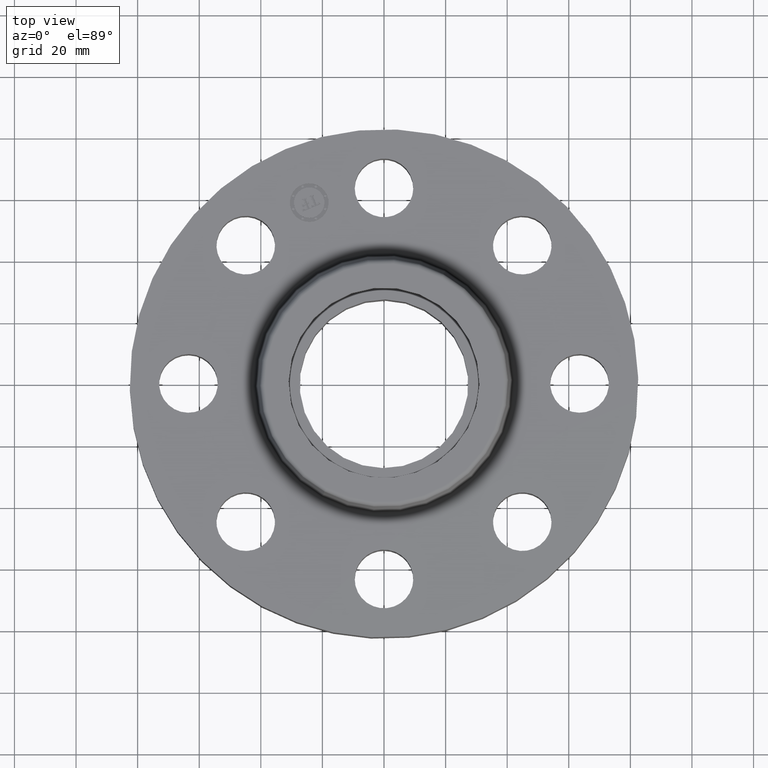
[diagram: clean part render]
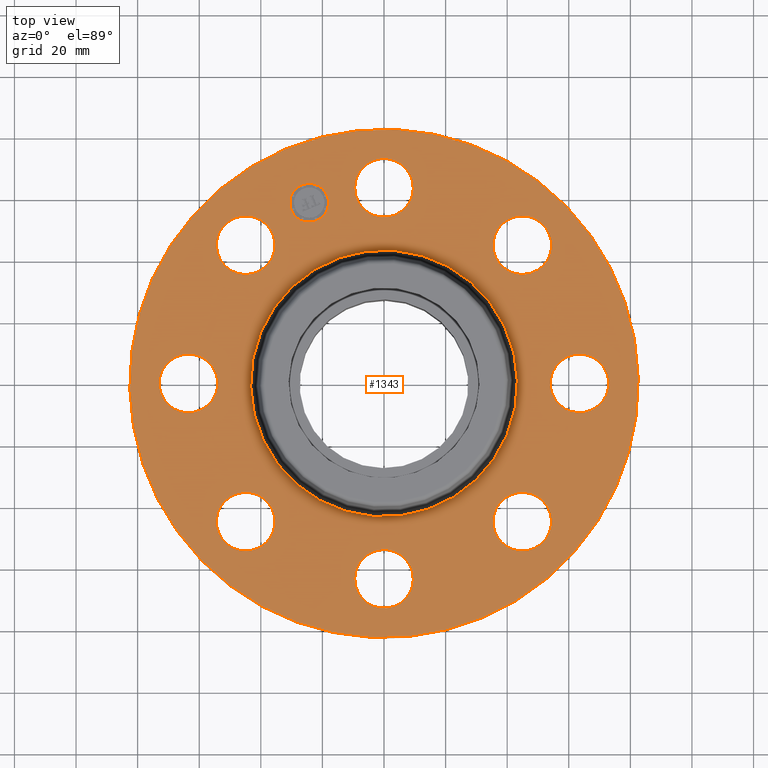
[diagram: same view with one face highlighted and labeled with its STEP entity id]
A machine part, top view. The second image highlights one B-rep face of the part: STEP entity #1343.
In plain terms, the highlighted planar face has unit normal (0, 0, -1).
Its self-contained STEP definition (entity closure, byte-faithful):
#561=AXIS2_PLACEMENT_3D('Circle Axis2P3D',#559,#560,$) ;
#580=AXIS2_PLACEMENT_3D('Circle Axis2P3D',#578,#579,$) ;
#611=AXIS2_PLACEMENT_3D('Circle Axis2P3D',#609,#610,$) ;
#623=AXIS2_PLACEMENT_3D('Circle Axis2P3D',#621,#622,$) ;
#655=AXIS2_PLACEMENT_3D('Circle Axis2P3D',#653,#654,$) ;
#667=AXIS2_PLACEMENT_3D('Circle Axis2P3D',#665,#666,$) ;
#699=AXIS2_PLACEMENT_3D('Circle Axis2P3D',#697,#698,$) ;
#711=AXIS2_PLACEMENT_3D('Circle Axis2P3D',#709,#710,$) ;
#743=AXIS2_PLACEMENT_3D('Circle Axis2P3D',#741,#742,$) ;
#755=AXIS2_PLACEMENT_3D('Circle Axis2P3D',#753,#754,$) ;
#787=AXIS2_PLACEMENT_3D('Circle Axis2P3D',#785,#786,$) ;
#799=AXIS2_PLACEMENT_3D('Circle Axis2P3D',#797,#798,$) ;
#831=AXIS2_PLACEMENT_3D('Circle Axis2P3D',#829,#830,$) ;
#843=AXIS2_PLACEMENT_3D('Circle Axis2P3D',#841,#842,$) ;
#875=AXIS2_PLACEMENT_3D('Circle Axis2P3D',#873,#874,$) ;
#887=AXIS2_PLACEMENT_3D('Circle Axis2P3D',#885,#886,$) ;
#919=AXIS2_PLACEMENT_3D('Circle Axis2P3D',#917,#918,$) ;
#931=AXIS2_PLACEMENT_3D('Circle Axis2P3D',#929,#930,$) ;
#949=AXIS2_PLACEMENT_3D('Circle Axis2P3D',#947,#948,$) ;
#984=AXIS2_PLACEMENT_3D('Circle Axis2P3D',#982,#983,$) ;
#1283=AXIS2_PLACEMENT_3D('Plane Axis2P3D',#1280,#1281,#1282) ;
#1327=AXIS2_PLACEMENT_3D('Circle Axis2P3D',#1325,#1326,$) ;
#1336=AXIS2_PLACEMENT_3D('Circle Axis2P3D',#1334,#1335,$) ;
#556=CARTESIAN_POINT('Vertex',(-1.55813300047,-2.85214332616,1.)) ;
#559=CARTESIAN_POINT('Axis2P3D Location',(0.,0.,1.)) ;
#563=CARTESIAN_POINT('Vertex',(1.55813300047,2.85214332616,1.)) ;
#578=CARTESIAN_POINT('Axis2P3D Location',(0.,0.,1.)) ;
#599=CARTESIAN_POINT('Vertex',(2.12759806422,-1.66218962879,1.)) ;
#606=CARTESIAN_POINT('Vertex',(1.40793584173,-1.87334427715,1.)) ;
#609=CARTESIAN_POINT('Axis2P3D Location',(1.76776695297,-1.76776695297,1.)) ;
#621=CARTESIAN_POINT('Axis2P3D Location',(1.76776695297,-1.76776695297,1.)) ;
#643=CARTESIAN_POINT('Vertex',(0.32909346071,-2.67978457699,1.)) ;
#650=CARTESIAN_POINT('Vertex',(-0.32909346071,-2.32021542303,1.)) ;
#653=CARTESIAN_POINT('Axis2P3D Location',(3.06161699788E-016,-2.50000000001,1.)) ;
#665=CARTESIAN_POINT('Axis2P3D Location',(3.06161699788E-016,-2.50000000001,1.)) ;
#687=CARTESIAN_POINT('Vertex',(-1.66218962879,-2.12759806422,1.)) ;
#694=CARTESIAN_POINT('Vertex',(-1.87334427715,-1.40793584173,1.)) ;
#697=CARTESIAN_POINT('Axis2P3D Location',(-1.76776695297,-1.76776695297,1.)) ;
#709=CARTESIAN_POINT('Axis2P3D Location',(-1.76776695297,-1.76776695297,1.)) ;
#731=CARTESIAN_POINT('Vertex',(-2.67978457699,-0.32909346071,1.)) ;
#738=CARTESIAN_POINT('Vertex',(-2.32021542303,0.32909346071,1.)) ;
#741=CARTESIAN_POINT('Axis2P3D Location',(-2.50000000001,-1.79501315131E-016,1.)) ;
#753=CARTESIAN_POINT('Axis2P3D Location',(-2.50000000001,-1.79501315131E-016,1.)) ;
#775=CARTESIAN_POINT('Vertex',(-2.12759806422,1.66218962879,1.)) ;
#782=CARTESIAN_POINT('Vertex',(-1.40793584173,1.87334427715,1.)) ;
#785=CARTESIAN_POINT('Axis2P3D Location',(-1.76776695297,1.76776695297,1.)) ;
#797=CARTESIAN_POINT('Axis2P3D Location',(-1.76776695297,1.76776695297,1.)) ;
#819=CARTESIAN_POINT('Vertex',(-0.32909346071,2.67978457699,1.)) ;
#826=CARTESIAN_POINT('Vertex',(0.32909346071,2.32021542303,1.)) ;
#829=CARTESIAN_POINT('Axis2P3D Location',(0.,2.50000000001,1.)) ;
#841=CARTESIAN_POINT('Axis2P3D Location',(0.,2.50000000001,1.)) ;
#863=CARTESIAN_POINT('Vertex',(1.66218962879,2.12759806422,1.)) ;
#870=CARTESIAN_POINT('Vertex',(1.87334427715,1.40793584173,1.)) ;
#873=CARTESIAN_POINT('Axis2P3D Location',(1.76776695297,1.76776695297,1.)) ;
#885=CARTESIAN_POINT('Axis2P3D Location',(1.76776695297,1.76776695297,1.)) ;
#907=CARTESIAN_POINT('Vertex',(2.67978457699,0.32909346071,1.)) ;
#914=CARTESIAN_POINT('Vertex',(2.32021542303,-0.32909346071,1.)) ;
#917=CARTESIAN_POINT('Axis2P3D Location',(2.50000000001,-1.26660384657E-016,1.)) ;
#929=CARTESIAN_POINT('Axis2P3D Location',(2.50000000001,-1.26660384657E-016,1.)) ;
#947=CARTESIAN_POINT('Axis2P3D Location',(0.,0.,1.)) ;
#951=CARTESIAN_POINT('Vertex',(0.81758641395,1.49658189218,1.)) ;
#953=CARTESIAN_POINT('Vertex',(-0.81758641395,-1.49658189218,1.)) ;
#982=CARTESIAN_POINT('Axis2P3D Location',(0.,0.,1.)) ;
#1280=CARTESIAN_POINT('Axis2P3D Location',(0.,3.25000000001,1.)) ;
#1325=CARTESIAN_POINT('Axis2P3D Location',(-0.956708580917,2.30969883129,1.)) ;
#1329=CARTESIAN_POINT('Vertex',(-1.18536876521,2.21498468178,1.)) ;
#1331=CARTESIAN_POINT('Vertex',(-0.728048396619,2.4044129808,1.)) ;
#1334=CARTESIAN_POINT('Axis2P3D Location',(-0.956708580917,2.30969883129,1.)) ;
#560=DIRECTION('Axis2P3D Direction',(0.,0.,-0.0393700787402)) ;
#579=DIRECTION('Axis2P3D Direction',(0.,0.,-0.0393700787402)) ;
#610=DIRECTION('Axis2P3D Direction',(-0.,0.,-0.0393700787402)) ;
#622=DIRECTION('Axis2P3D Direction',(-0.,0.,-0.0393700787402)) ;
#654=DIRECTION('Axis2P3D Direction',(-0.,0.,-0.0393700787402)) ;
#666=DIRECTION('Axis2P3D Direction',(-0.,0.,-0.0393700787402)) ;
#698=DIRECTION('Axis2P3D Direction',(0.,0.,-0.0393700787402)) ;
#710=DIRECTION('Axis2P3D Direction',(0.,0.,-0.0393700787402)) ;
#742=DIRECTION('Axis2P3D Direction',(0.,0.,-0.0393700787402)) ;
#754=DIRECTION('Axis2P3D Direction',(0.,0.,-0.0393700787402)) ;
#786=DIRECTION('Axis2P3D Direction',(0.,0.,-0.0393700787402)) ;
#798=DIRECTION('Axis2P3D Direction',(0.,0.,-0.0393700787402)) ;
#830=DIRECTION('Axis2P3D Direction',(0.,-0.,-0.0393700787402)) ;
#842=DIRECTION('Axis2P3D Direction',(0.,-0.,-0.0393700787402)) ;
#874=DIRECTION('Axis2P3D Direction',(0.,-0.,-0.0393700787402)) ;
#886=DIRECTION('Axis2P3D Direction',(0.,-0.,-0.0393700787402)) ;
#918=DIRECTION('Axis2P3D Direction',(0.,-0.,-0.0393700787402)) ;
#930=DIRECTION('Axis2P3D Direction',(0.,-0.,-0.0393700787402)) ;
#948=DIRECTION('Axis2P3D Direction',(0.,0.,-0.0393700787402)) ;
#983=DIRECTION('Axis2P3D Direction',(0.,0.,-0.0393700787402)) ;
#1281=DIRECTION('Axis2P3D Direction',(0.,0.,-0.0393700787402)) ;
#1282=DIRECTION('Axis2P3D XDirection',(0.0393700787402,0.,0.)) ;
#1326=DIRECTION('Axis2P3D Direction',(0.,0.,-0.0393700787402)) ;
#1335=DIRECTION('Axis2P3D Direction',(0.,0.,-0.0393700787402)) ;
#1286=ORIENTED_EDGE('',*,*,#582,.F.) ;
#1287=ORIENTED_EDGE('',*,*,#565,.F.) ;
#1290=ORIENTED_EDGE('',*,*,#833,.T.) ;
#1291=ORIENTED_EDGE('',*,*,#845,.T.) ;
#1294=ORIENTED_EDGE('',*,*,#986,.T.) ;
#1295=ORIENTED_EDGE('',*,*,#955,.T.) ;
#1298=ORIENTED_EDGE('',*,*,#889,.T.) ;
#1299=ORIENTED_EDGE('',*,*,#877,.T.) ;
#1302=ORIENTED_EDGE('',*,*,#933,.T.) ;
#1303=ORIENTED_EDGE('',*,*,#921,.T.) ;
#1306=ORIENTED_EDGE('',*,*,#625,.T.) ;
#1307=ORIENTED_EDGE('',*,*,#613,.T.) ;
#1310=ORIENTED_EDGE('',*,*,#669,.T.) ;
#1311=ORIENTED_EDGE('',*,*,#657,.T.) ;
#1314=ORIENTED_EDGE('',*,*,#713,.T.) ;
#1315=ORIENTED_EDGE('',*,*,#701,.T.) ;
#1318=ORIENTED_EDGE('',*,*,#757,.T.) ;
#1319=ORIENTED_EDGE('',*,*,#745,.T.) ;
#1322=ORIENTED_EDGE('',*,*,#801,.T.) ;
#1323=ORIENTED_EDGE('',*,*,#789,.T.) ;
#1340=ORIENTED_EDGE('',*,*,#1333,.T.) ;
#1341=ORIENTED_EDGE('',*,*,#1338,.T.) ;
#1292=FACE_BOUND('',#1289,.T.) ;
#1296=FACE_BOUND('',#1293,.T.) ;
#1300=FACE_BOUND('',#1297,.T.) ;
#1304=FACE_BOUND('',#1301,.T.) ;
#1308=FACE_BOUND('',#1305,.T.) ;
#1312=FACE_BOUND('',#1309,.T.) ;
#1316=FACE_BOUND('',#1313,.T.) ;
#1320=FACE_BOUND('',#1317,.T.) ;
#1324=FACE_BOUND('',#1321,.T.) ;
#1342=FACE_BOUND('',#1339,.T.) ;
#1343=ADVANCED_FACE('PartBody',(#1288,#1292,#1296,#1300,#1304,#1308,#1312,#1316,#1320,#1324,#1342),#1284,.F.) ;
#562=CIRCLE('generated circle',#561,3.25000000001) ;
#581=CIRCLE('generated circle',#580,3.25000000001) ;
#612=CIRCLE('generated circle',#611,0.375000000001) ;
#624=CIRCLE('generated circle',#623,0.375000000001) ;
#656=CIRCLE('generated circle',#655,0.375000000001) ;
#668=CIRCLE('generated circle',#667,0.375000000001) ;
#700=CIRCLE('generated circle',#699,0.375000000001) ;
#712=CIRCLE('generated circle',#711,0.375000000001) ;
#744=CIRCLE('generated circle',#743,0.375000000001) ;
#756=CIRCLE('generated circle',#755,0.375000000001) ;
#788=CIRCLE('generated circle',#787,0.375000000001) ;
#800=CIRCLE('generated circle',#799,0.375000000001) ;
#832=CIRCLE('generated circle',#831,0.375000000001) ;
#844=CIRCLE('generated circle',#843,0.375000000001) ;
#876=CIRCLE('generated circle',#875,0.375000000001) ;
#888=CIRCLE('generated circle',#887,0.375000000001) ;
#920=CIRCLE('generated circle',#919,0.375000000001) ;
#932=CIRCLE('generated circle',#931,0.375000000001) ;
#950=CIRCLE('generated circle',#949,1.70534597788) ;
#985=CIRCLE('generated circle',#984,1.70534597788) ;
#1328=CIRCLE('generated circle',#1327,0.247500000001) ;
#1337=CIRCLE('generated circle',#1336,0.247500000001) ;
#565=EDGE_CURVE('',#557,#564,#562,.T.) ;
#582=EDGE_CURVE('',#564,#557,#581,.T.) ;
#613=EDGE_CURVE('',#600,#607,#612,.T.) ;
#625=EDGE_CURVE('',#607,#600,#624,.T.) ;
#657=EDGE_CURVE('',#644,#651,#656,.T.) ;
#669=EDGE_CURVE('',#651,#644,#668,.T.) ;
#701=EDGE_CURVE('',#688,#695,#700,.T.) ;
#713=EDGE_CURVE('',#695,#688,#712,.T.) ;
#745=EDGE_CURVE('',#732,#739,#744,.T.) ;
#757=EDGE_CURVE('',#739,#732,#756,.T.) ;
#789=EDGE_CURVE('',#776,#783,#788,.T.) ;
#801=EDGE_CURVE('',#783,#776,#800,.T.) ;
#833=EDGE_CURVE('',#820,#827,#832,.T.) ;
#845=EDGE_CURVE('',#827,#820,#844,.T.) ;
#877=EDGE_CURVE('',#864,#871,#876,.T.) ;
#889=EDGE_CURVE('',#871,#864,#888,.T.) ;
#921=EDGE_CURVE('',#908,#915,#920,.T.) ;
#933=EDGE_CURVE('',#915,#908,#932,.T.) ;
#955=EDGE_CURVE('',#952,#954,#950,.T.) ;
#986=EDGE_CURVE('',#954,#952,#985,.T.) ;
#1333=EDGE_CURVE('',#1330,#1332,#1328,.T.) ;
#1338=EDGE_CURVE('',#1332,#1330,#1337,.T.) ;
#1285=EDGE_LOOP('',(#1286,#1287)) ;
#1289=EDGE_LOOP('',(#1290,#1291)) ;
#1293=EDGE_LOOP('',(#1294,#1295)) ;
#1297=EDGE_LOOP('',(#1298,#1299)) ;
#1301=EDGE_LOOP('',(#1302,#1303)) ;
#1305=EDGE_LOOP('',(#1306,#1307)) ;
#1309=EDGE_LOOP('',(#1310,#1311)) ;
#1313=EDGE_LOOP('',(#1314,#1315)) ;
#1317=EDGE_LOOP('',(#1318,#1319)) ;
#1321=EDGE_LOOP('',(#1322,#1323)) ;
#1339=EDGE_LOOP('',(#1340,#1341)) ;
#1288=FACE_OUTER_BOUND('',#1285,.T.) ;
#1284=PLANE('',#1283) ;
#557=VERTEX_POINT('',#556) ;
#564=VERTEX_POINT('',#563) ;
#600=VERTEX_POINT('',#599) ;
#607=VERTEX_POINT('',#606) ;
#644=VERTEX_POINT('',#643) ;
#651=VERTEX_POINT('',#650) ;
#688=VERTEX_POINT('',#687) ;
#695=VERTEX_POINT('',#694) ;
#732=VERTEX_POINT('',#731) ;
#739=VERTEX_POINT('',#738) ;
#776=VERTEX_POINT('',#775) ;
#783=VERTEX_POINT('',#782) ;
#820=VERTEX_POINT('',#819) ;
#827=VERTEX_POINT('',#826) ;
#864=VERTEX_POINT('',#863) ;
#871=VERTEX_POINT('',#870) ;
#908=VERTEX_POINT('',#907) ;
#915=VERTEX_POINT('',#914) ;
#952=VERTEX_POINT('',#951) ;
#954=VERTEX_POINT('',#953) ;
#1330=VERTEX_POINT('',#1329) ;
#1332=VERTEX_POINT('',#1331) ;